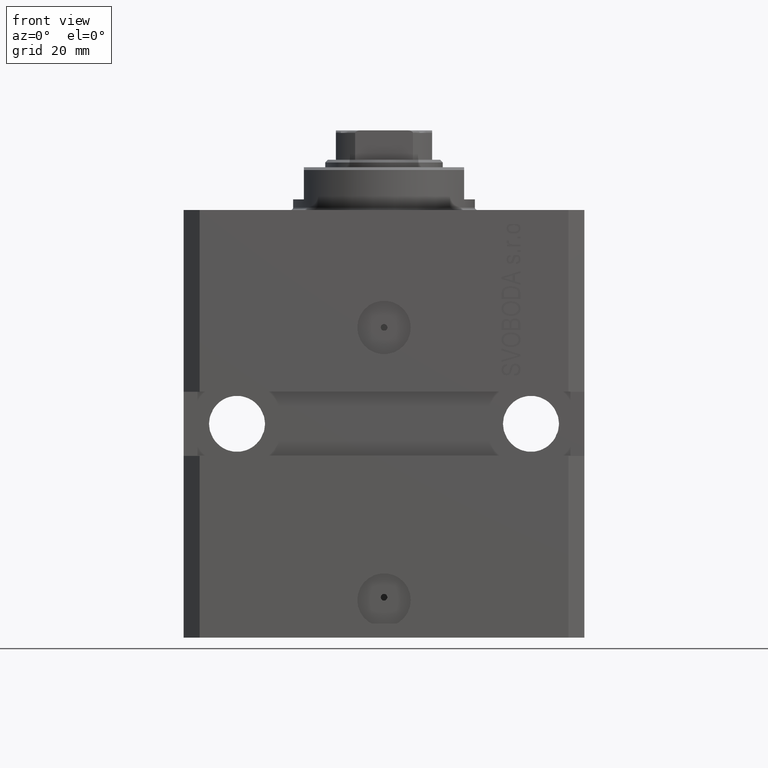
[diagram: clean part render]
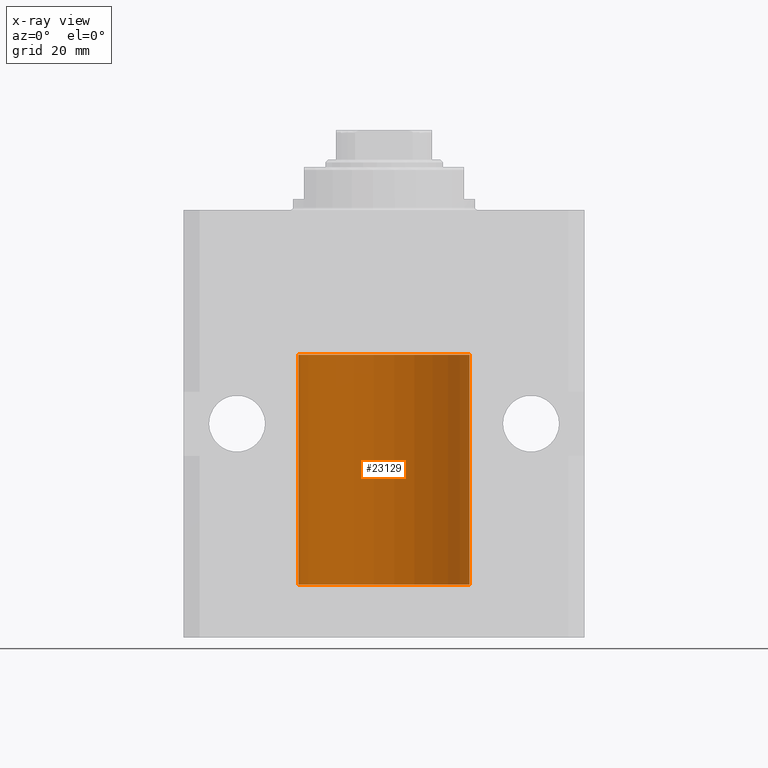
[diagram: x-ray — body ghosted, one internal face saturated and labeled with its STEP entity id]
A machine part, front view, then the same camera in x-ray: the body is ghosted and one INTERNAL B-rep face — a face not visible from any outside direction — is saturated and labeled: STEP entity #23129.
In plain terms, the highlighted cylindrical surface (partial cylindrical patch) has radius 16 mm, axis along (0, 0, 1).
Its self-contained STEP definition (entity closure, byte-faithful):
#558 = B_SPLINE_CURVE_WITH_KNOTS ( 'NONE', 3,
 ( #39462, #25257, #7012, #44396, #26875, #15728, #41310, #44632 ),
 .UNSPECIFIED., .F., .F.,
 ( 4, 2, 2, 4 ),
 ( 1.783888443149829469E-18, 0.0002443331572175257886, 0.0004886663144350497342, 0.0009773326288700682433 ),
 .UNSPECIFIED. ) ;
#927 = ORIENTED_EDGE ( 'NONE', *, *, #42580, .T. ) ;
#1078 = DIRECTION ( 'NONE',  ( -0.000000000000000000, -0.000000000000000000, 1.000000000000000000 ) ) ;
#1866 = EDGE_CURVE ( 'NONE', #31840, #44113, #38361, .T. ) ;
#2698 = CARTESIAN_POINT ( 'NONE',  ( 16.00000000000013145, 3.665532692826917502E-13, -67.37499999999657518 ) ) ;
#3119 = CARTESIAN_POINT ( 'NONE',  ( -16.00000000000000000, 1.959434878635765131E-15, -27.10000000000000142 ) ) ;
#3429 = EDGE_LOOP ( 'NONE', ( #39022, #16453, #32754, #18056, #37791, #927, #33100 ) ) ;
#4261 = CYLINDRICAL_SURFACE ( 'NONE', #15664, 16.00000000000000000 ) ;
#7012 = CARTESIAN_POINT ( 'NONE',  ( 15.99934183755190986, 0.1636877470527013101, -68.60872690654070993 ) ) ;
#9104 = DIRECTION ( 'NONE',  ( 1.000000000000000000, 0.000000000000000000, 0.000000000000000000 ) ) ;
#9577 = CARTESIAN_POINT ( 'NONE',  ( 15.98844460043491367, 0.6087869699337551399, -67.83657454967556077 ) ) ;
#10741 = VECTOR ( 'NONE', #24086, 1000.000000000000000 ) ;
#12464 = CIRCLE ( 'NONE', #32150, 16.00000000000000000 ) ;
#14145 = AXIS2_PLACEMENT_3D ( 'NONE', #41089, #41563, #9104 ) ;
#15488 = VERTEX_POINT ( 'NONE', #45216 ) ;
#15664 = AXIS2_PLACEMENT_3D ( 'NONE', #36956, #40487, #18942 ) ;
#15728 = CARTESIAN_POINT ( 'NONE',  ( 15.99070366873610283, 0.5574063959867601170, -68.32639436837555991 ) ) ;
#16453 = ORIENTED_EDGE ( 'NONE', *, *, #45948, .F. ) ;
#16494 = LINE ( 'NONE', #45395, #10741 ) ;
#16687 = CARTESIAN_POINT ( 'NONE',  ( 15.98778830858070954, 0.6250000000080517815, -67.99999999999916156 ) ) ;
#16833 = CARTESIAN_POINT ( 'NONE',  ( 16.00000000000000000, -1.835653844722709729E-15, -68.62500000000000000 ) ) ;
#17424 = B_SPLINE_CURVE_WITH_KNOTS ( 'NONE', 3,
 ( #16687, #38254, #9577, #24045, #38485, #42273, #34925, #2698 ),
 .UNSPECIFIED., .F., .F.,
 ( 4, 2, 2, 4 ),
 ( 0.0009773326288700682433, 0.001221554802188685399, 0.001465776975507302772, 0.001954221322144537518 ),
 .UNSPECIFIED. ) ;
#18056 = ORIENTED_EDGE ( 'NONE', *, *, #37338, .T. ) ;
#18277 = CARTESIAN_POINT ( 'NONE',  ( 0.000000000000000000, 0.000000000000000000, -70.09999999999999432 ) ) ;
#18942 = DIRECTION ( 'NONE',  ( 1.000000000000000000, 0.000000000000000000, 0.000000000000000000 ) ) ;
#19694 = CARTESIAN_POINT ( 'NONE',  ( 15.98778830858070954, 0.6250000000080517815, -67.99999999999916156 ) ) ;
#20192 = VECTOR ( 'NONE', #1078, 1000.000000000000000 ) ;
#20541 = CARTESIAN_POINT ( 'NONE',  ( -16.00000000000000000, 1.959434878635765131E-15, -70.09999999999999432 ) ) ;
#23129 = ADVANCED_FACE ( 'NONE', ( #25841 ), #4261, .F. ) ;
#23444 = VERTEX_POINT ( 'NONE', #20541 ) ;
#24045 = CARTESIAN_POINT ( 'NONE',  ( 15.99070695999103542, 0.5461439696927204990, -67.68526802364047512 ) ) ;
#24086 = DIRECTION ( 'NONE',  ( -0.000000000000000000, -0.000000000000000000, 1.000000000000000000 ) ) ;
#25257 = CARTESIAN_POINT ( 'NONE',  ( 16.00000000000001066, 0.08261762387943044628, -68.62500000000000000 ) ) ;
#25402 = DIRECTION ( 'NONE',  ( 0.000000000000000000, 0.000000000000000000, 1.000000000000000000 ) ) ;
#25841 = FACE_OUTER_BOUND ( 'NONE', #3429, .T. ) ;
#26189 = CARTESIAN_POINT ( 'NONE',  ( -16.00000000000000000, 1.959434878635765131E-15, -70.09999999999999432 ) ) ;
#26362 = EDGE_CURVE ( 'NONE', #23444, #44113, #36853, .T. ) ;
#26875 = CARTESIAN_POINT ( 'NONE',  ( 15.99548458234361448, 0.3844468804816183471, -68.49947786696357355 ) ) ;
#27186 = CARTESIAN_POINT ( 'NONE',  ( 16.00000000000013145, 3.665532692826917502E-13, -67.37499999999657518 ) ) ;
#27951 = VERTEX_POINT ( 'NONE', #16833 ) ;
#29176 = DIRECTION ( 'NONE',  ( 1.000000000000000000, 0.000000000000000000, 0.000000000000000000 ) ) ;
#30147 = VERTEX_POINT ( 'NONE', #27186 ) ;
#31840 = VERTEX_POINT ( 'NONE', #33879 ) ;
#32150 = AXIS2_PLACEMENT_3D ( 'NONE', #18277, #25402, #29176 ) ;
#32754 = ORIENTED_EDGE ( 'NONE', *, *, #37218, .T. ) ;
#33100 = ORIENTED_EDGE ( 'NONE', *, *, #1866, .T. ) ;
#33879 = CARTESIAN_POINT ( 'NONE',  ( 16.00000000000000000, 0.000000000000000000, -27.10000000000000142 ) ) ;
#34925 = CARTESIAN_POINT ( 'NONE',  ( 15.99999999999999645, 0.1631343969470158417, -67.37500000000021316 ) ) ;
#34972 = VECTOR ( 'NONE', #39059, 1000.000000000000000 ) ;
#35974 = LINE ( 'NONE', #46626, #34972 ) ;
#36853 = LINE ( 'NONE', #26189, #20192 ) ;
#36956 = CARTESIAN_POINT ( 'NONE',  ( 0.000000000000000000, 0.000000000000000000, -70.09999999999999432 ) ) ;
#37218 = EDGE_CURVE ( 'NONE', #15488, #27951, #16494, .T. ) ;
#37338 = EDGE_CURVE ( 'NONE', #27951, #37743, #558, .T. ) ;
#37743 = VERTEX_POINT ( 'NONE', #19694 ) ;
#37791 = ORIENTED_EDGE ( 'NONE', *, *, #38889, .T. ) ;
#38254 = CARTESIAN_POINT ( 'NONE',  ( 15.98778830858103817, 0.6249999999997223332, -67.91847885046213662 ) ) ;
#38361 = CIRCLE ( 'NONE', #14145, 16.00000000000000000 ) ;
#38485 = CARTESIAN_POINT ( 'NONE',  ( 15.99228275317786441, 0.5002975944204781644, -67.61642014570176684 ) ) ;
#38889 = EDGE_CURVE ( 'NONE', #37743, #30147, #17424, .T. ) ;
#39022 = ORIENTED_EDGE ( 'NONE', *, *, #26362, .F. ) ;
#39059 = DIRECTION ( 'NONE',  ( -0.000000000000000000, -0.000000000000000000, 1.000000000000000000 ) ) ;
#39462 = CARTESIAN_POINT ( 'NONE',  ( 16.00000000000000000, -1.835653844722709729E-15, -68.62500000000000000 ) ) ;
#40487 = DIRECTION ( 'NONE',  ( -0.000000000000000000, -0.000000000000000000, 1.000000000000000000 ) ) ;
#41089 = CARTESIAN_POINT ( 'NONE',  ( 0.000000000000000000, 0.000000000000000000, -27.10000000000000142 ) ) ;
#41310 = CARTESIAN_POINT ( 'NONE',  ( 15.98778830858101685, 0.6250000000002223777, -68.16311639173024162 ) ) ;
#41563 = DIRECTION ( 'NONE',  ( 0.000000000000000000, 0.000000000000000000, 1.000000000000000000 ) ) ;
#42273 = CARTESIAN_POINT ( 'NONE',  ( 15.99711856062700477, 0.3252985083514284281, -67.44140297987711108 ) ) ;
#42580 = EDGE_CURVE ( 'NONE', #30147, #31840, #35974, .T. ) ;
#44113 = VERTEX_POINT ( 'NONE', #3119 ) ;
#44396 = CARTESIAN_POINT ( 'NONE',  ( 15.99707608081895138, 0.3151028052310259620, -68.54594170697733091 ) ) ;
#44632 = CARTESIAN_POINT ( 'NONE',  ( 15.98778830858070954, 0.6250000000080517815, -67.99999999999916156 ) ) ;
#45216 = CARTESIAN_POINT ( 'NONE',  ( 16.00000000000000000, 0.000000000000000000, -70.09999999999999432 ) ) ;
#45395 = CARTESIAN_POINT ( 'NONE',  ( 16.00000000000000000, 0.000000000000000000, -70.09999999999999432 ) ) ;
#45948 = EDGE_CURVE ( 'NONE', #15488, #23444, #12464, .T. ) ;
#46626 = CARTESIAN_POINT ( 'NONE',  ( 16.00000000000000000, 0.000000000000000000, -70.09999999999999432 ) ) ;